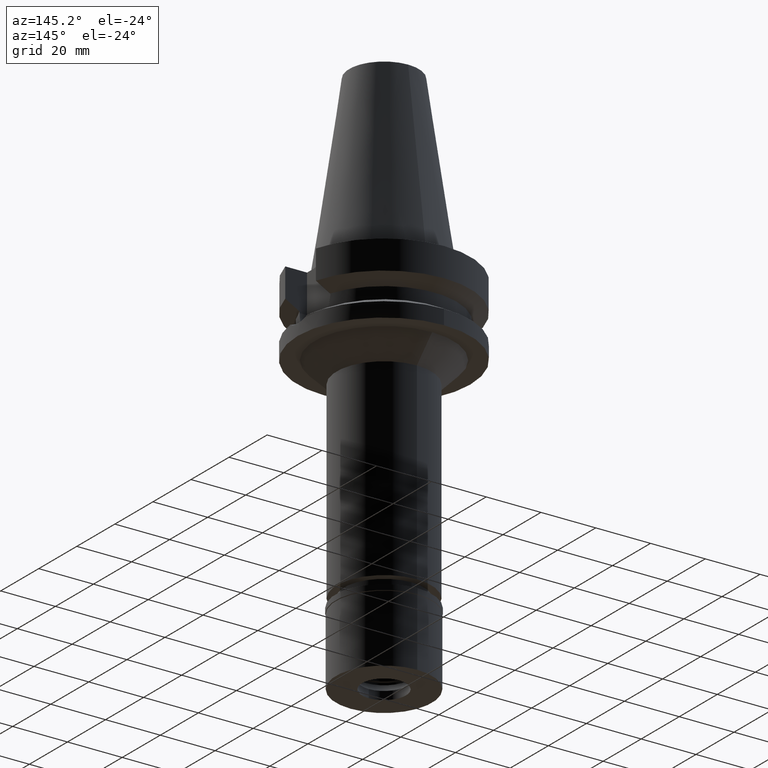
[diagram: clean part render]
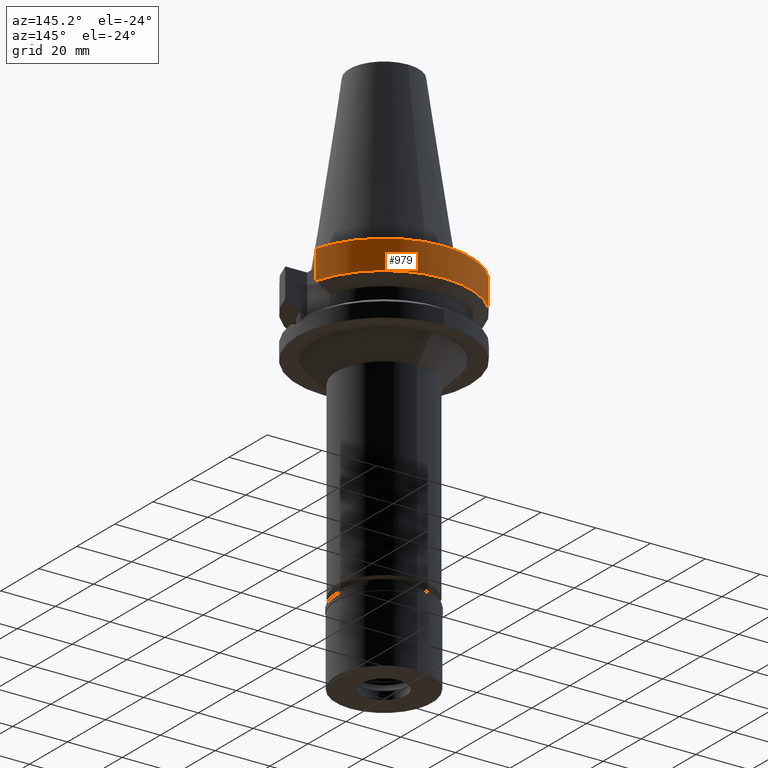
[diagram: same view with one face highlighted and labeled with its STEP entity id]
A machine part, auxiliary view. The second image highlights one B-rep face of the part: STEP entity #979.
In plain terms, the highlighted cylindrical surface (partial cylindrical patch) has radius 31.5 mm, axis along (0, 0, -1).
Its self-contained STEP definition (entity closure, byte-faithful):
#122 = EDGE_CURVE ( 'NONE', #214, #1573, #1148, .T. ) ;
#135 = CARTESIAN_POINT ( 'NONE',  ( 0.0000000000000000000, 0.0000000000000000000, -1.000000000000000000 ) ) ;
#144 = VECTOR ( 'NONE', #221, 1000.000000000000114 ) ;
#180 = CARTESIAN_POINT ( 'NONE',  ( 0.0000000000000000000, 0.0000000000000000000, 0.0000000000000000000 ) ) ;
#214 = VERTEX_POINT ( 'NONE', #394 ) ;
#221 = DIRECTION ( 'NONE',  ( 1.036692336595019553E-07, 3.921914163603068729E-07, -0.9999999999999177325 ) ) ;
#352 = AXIS2_PLACEMENT_3D ( 'NONE', #960, #3096, #445 ) ;
#394 = CARTESIAN_POINT ( 'NONE',  ( -30.45402272279000044, 8.050000000000000711, -1.000000000000000000 ) ) ;
#445 = DIRECTION ( 'NONE',  ( 0.0000000000000000000, 1.000000000000000000, 0.0000000000000000000 ) ) ;
#455 = FACE_OUTER_BOUND ( 'NONE', #1864, .T. ) ;
#459 = CARTESIAN_POINT ( 'NONE',  ( 30.45402291366999847, 8.049999277850000468, -11.56551215691999879 ) ) ;
#896 = DIRECTION ( 'NONE',  ( -1.806700258318990300E-08, 6.834966772704962812E-08, 0.9999999999999974465 ) ) ;
#960 = CARTESIAN_POINT ( 'NONE',  ( 0.0000000000000000000, 0.0000000000000000000, -11.56550565266999975 ) ) ;
#979 = ADVANCED_FACE ( 'NONE', ( #455 ), #1217, .T. ) ;
#982 = DIRECTION ( 'NONE',  ( 0.0000000000000000000, -1.000000000000000000, 0.0000000000000000000 ) ) ;
#1148 = CIRCLE ( 'NONE', #2555, 31.50000000000000000 ) ;
#1160 = VECTOR ( 'NONE', #896, 1000.000000000000114 ) ;
#1217 = CYLINDRICAL_SURFACE ( 'NONE', #1508, 31.50000000000000000 ) ;
#1251 = ORIENTED_EDGE ( 'NONE', *, *, #2121, .F. ) ;
#1508 = AXIS2_PLACEMENT_3D ( 'NONE', #180, #2611, #982 ) ;
#1573 = VERTEX_POINT ( 'NONE', #2832 ) ;
#1592 = DIRECTION ( 'NONE',  ( 0.0000000000000000000, 0.0000000000000000000, -1.000000000000000000 ) ) ;
#1787 = EDGE_CURVE ( 'NONE', #214, #2607, #2381, .T. ) ;
#1799 = EDGE_CURVE ( 'NONE', #2263, #2607, #2158, .T. ) ;
#1864 = EDGE_LOOP ( 'NONE', ( #2225, #2094, #1251, #1936 ) ) ;
#1936 = ORIENTED_EDGE ( 'NONE', *, *, #1799, .T. ) ;
#2071 = DIRECTION ( 'NONE',  ( 0.0000000000000000000, 1.000000000000000000, 0.0000000000000000000 ) ) ;
#2092 = LINE ( 'NONE', #2108, #1160 ) ;
#2094 = ORIENTED_EDGE ( 'NONE', *, *, #122, .T. ) ;
#2108 = CARTESIAN_POINT ( 'NONE',  ( 30.45402291366999847, 8.049999277850000468, -11.56551215691999879 ) ) ;
#2121 = EDGE_CURVE ( 'NONE', #2263, #1573, #2092, .T. ) ;
#2145 = CARTESIAN_POINT ( 'NONE',  ( -30.45402272279000044, 8.050000000000000711, -1.000000000000000000 ) ) ;
#2158 = CIRCLE ( 'NONE', #352, 31.50000000000000000 ) ;
#2225 = ORIENTED_EDGE ( 'NONE', *, *, #1787, .F. ) ;
#2263 = VERTEX_POINT ( 'NONE', #459 ) ;
#2381 = LINE ( 'NONE', #2145, #144 ) ;
#2555 = AXIS2_PLACEMENT_3D ( 'NONE', #135, #1592, #2071 ) ;
#2607 = VERTEX_POINT ( 'NONE', #3059 ) ;
#2611 = DIRECTION ( 'NONE',  ( 0.0000000000000000000, 0.0000000000000000000, -1.000000000000000000 ) ) ;
#2832 = CARTESIAN_POINT ( 'NONE',  ( 30.45402272279000044, 8.050000000000000711, -1.000000000000000000 ) ) ;
#3059 = CARTESIAN_POINT ( 'NONE',  ( -30.45402162746999863, 8.050004143685999480, -11.56546832811000058 ) ) ;
#3096 = DIRECTION ( 'NONE',  ( 0.0000000000000000000, 0.0000000000000000000, 1.000000000000000000 ) ) ;